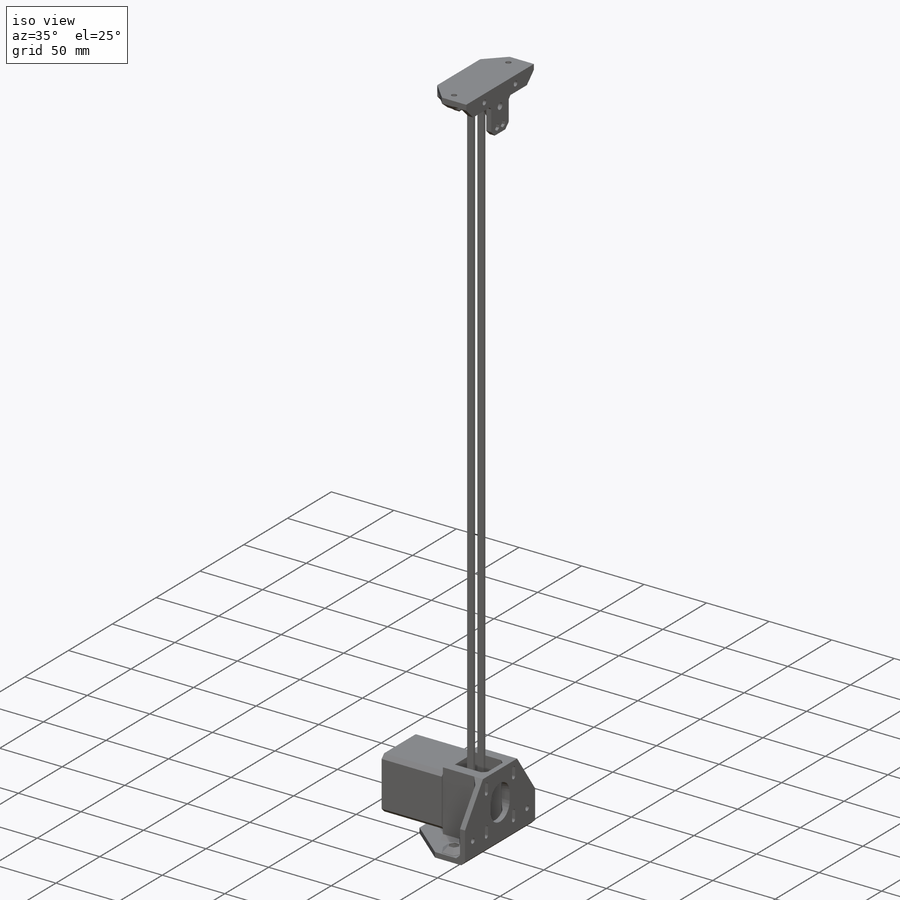
[diagram: iso view]
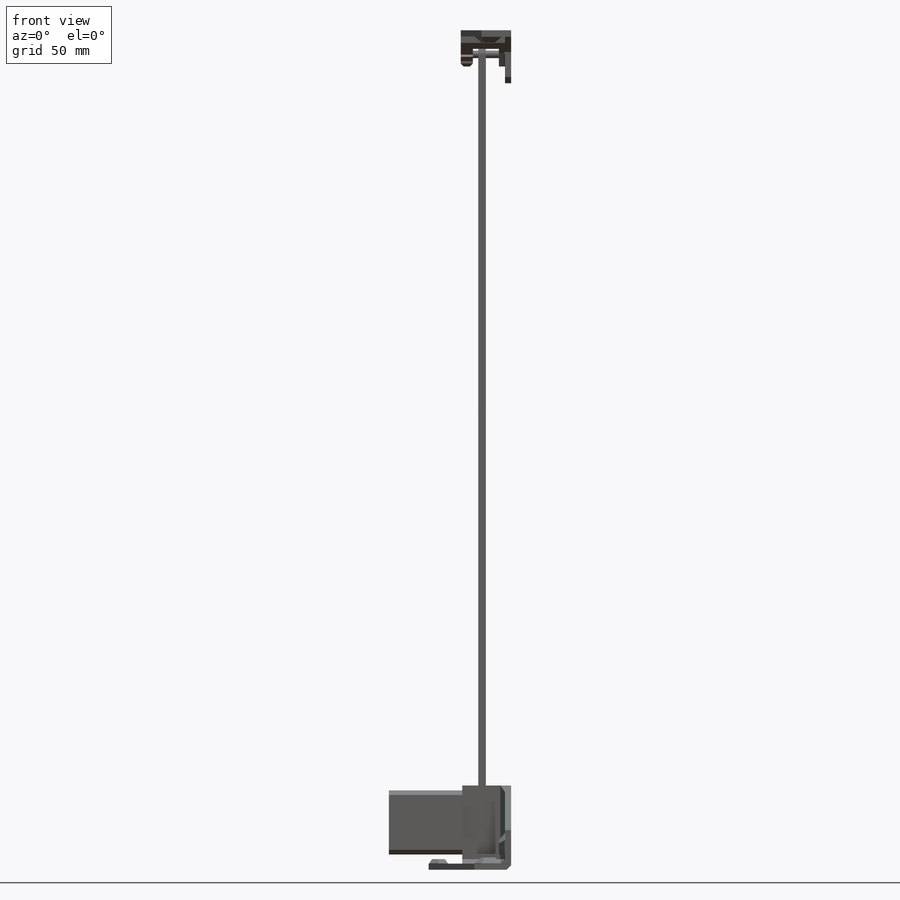
[diagram: front view]
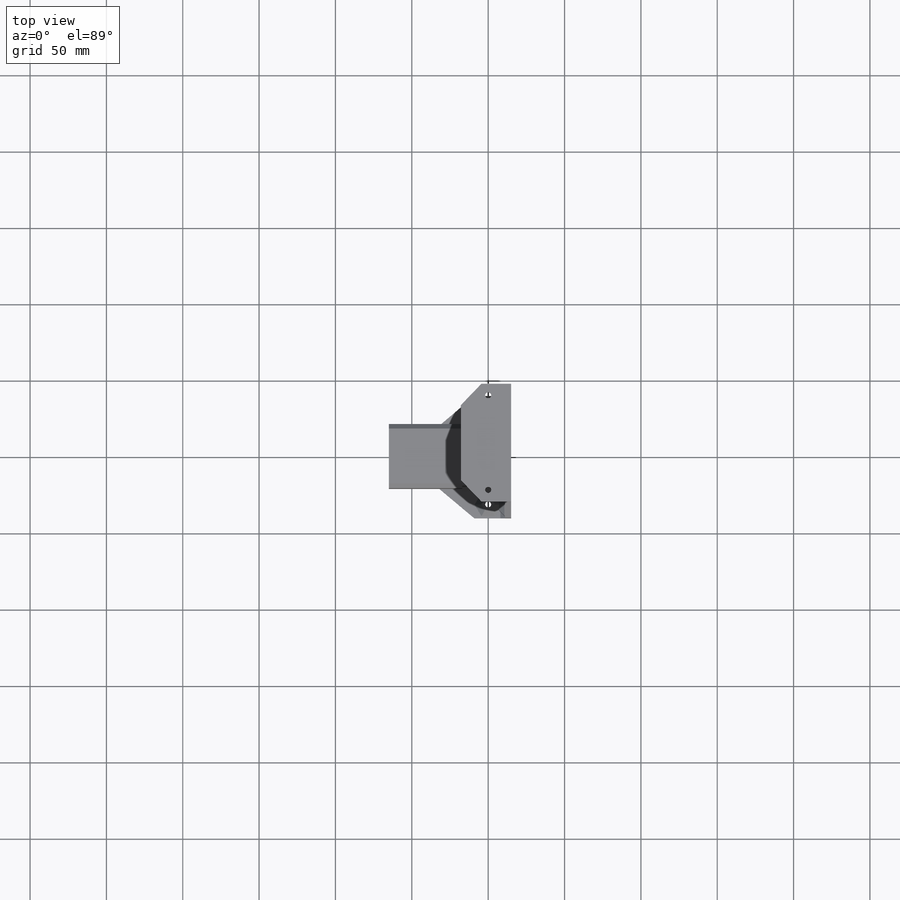
[diagram: top view]
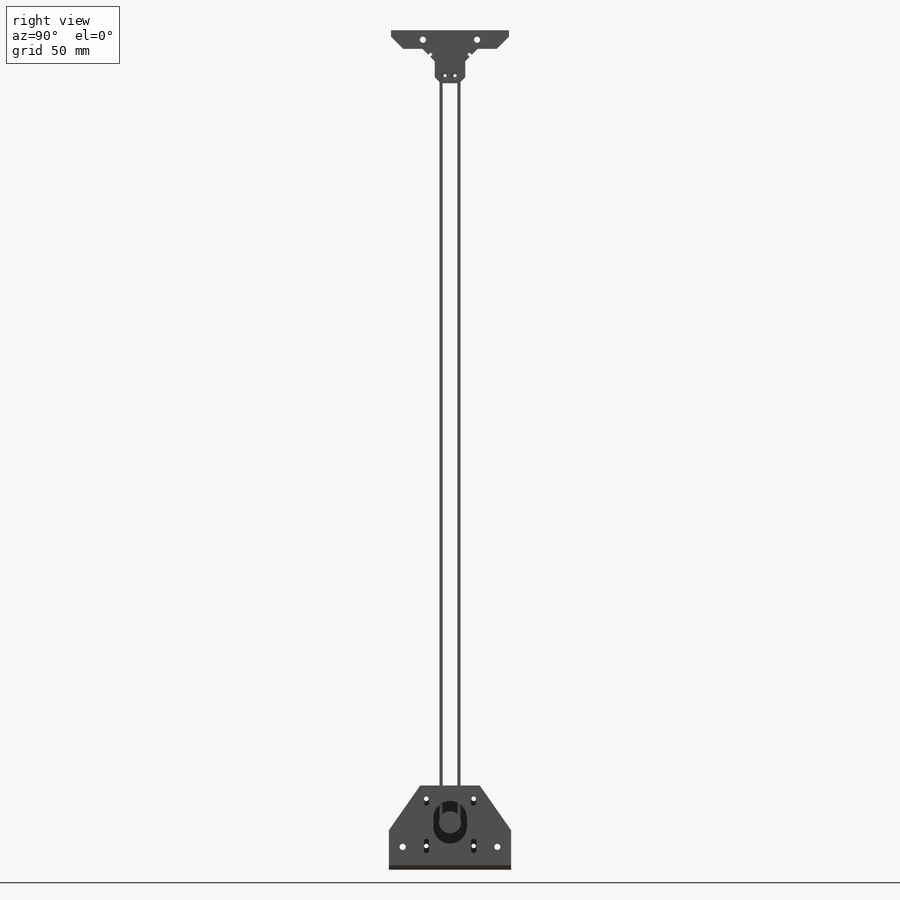
[diagram: right view]
SOLIDWORKS PART (.sldprt)
format: sldprt  version: not decoded by parser v0  size: 2,499,584 bytes
history: native  units: mm
features: sketch x57, extrude x38, chamfer x31, cut_extrude x18, material x1, cut_revolve x1 (+16 scaffold rows collapsed; 4 parser-record rows omitted)
feature tree (166):
  scaffold x16  (default folders/planes/origin — collapsed)
  material  "Material <not specified>"
  sketch  "Sketch1"  dims[D1=390.0mm D3=10.0mm D2=65.0mm D4=116.0mm D5=5.0mm D6=25.0mm]
  extrude  "Boss-Extrude1"  Depth=550mm
  sketch  "Sketch2"  dims[D1=0.0mm D2=0.0mm]
  cut_extrude  "Cut-Extrude1"  Depth=400mm
  parser-record x4  (decoder bookkeeping rows leaked as tree rows — omitted from the tree; the rows remain in map.json)
  sketch  "Sketch3"  dims[c1.D1=22.0mm c1.D9=3.4mm c1.D11=1.5mm c1.D2=40.0mm c1.D3=5.0mm c1.D4=28.0mm c1.D5=6.0mm c1.D6=~17.426623mm c2.D6=55.0deg c2.D7=31.0mm c2.D8=31.0mm c2.D10=6.0mm c2.D11=4.0mm c2.D12=4.0mm]
  extrude  "Boss-Extrude2"  Depth=4mm
  sketch  "Sketch4"  dims[D1=0.0mm D2=0.0mm D3=0.0mm D4=0.0mm]
  extrude  "Boss-Extrude3"  Depth=28mm
  sketch  "Sketch5"
  extrude  "Boss-Extrude4"  Depth=4mm
  sketch  "Sketch49"  dims[D1=22.0mm]
  extrude  "Boss-Extrude32"  [1 undecoded]
  chamfer  "Chamfer1"  Distance=3mm Angle=45deg
  chamfer  "Chamfer2"  Distance=30mm Angle=40deg
  chamfer  "Chamfer3"  Distance=3mm Angle=45deg
  sketch  "Sketch6"  dims[D1=12.0mm]
  cut_extrude  "Cut-Extrude2"  [1 undecoded]
  chamfer  "Chamfer4"  Distance=2mm Angle=45deg
  sketch  "Sketch7"  dims[c1.D1=~5.897016mm c1.D2=15.0mm c1.D3=31.0mm c2.D2=15.0mm c2.D4=4.0mm]
  extrude  "Boss-Extrude5"  Depth=4mm
  chamfer  "Chamfer5"  Distance=3.75mm Angle=45deg
  sketch  "Sketch22"  dims[D1=0.25mm D2=0.25mm]
  extrude  "Boss-Extrude12"  Depth=0.5mm
  chamfer  "Chamfer12"  Distance=0.25mm Angle=45deg
  sketch  "Sketch8"  dims[D3=4.0mm D1=15.0mm D2=31.0mm]
  cut_extrude  "Cut-Extrude3"  [1 undecoded]
  sketch  "Sketch26"  dims[D1=7.25mm D2=15.0mm D3=31.0mm D4=4.0mm]
  extrude  "Boss-Extrude16"  Depth=4mm
  chamfer  "Chamfer14"  Distance=3.75mm Angle=45deg
  sketch  "Sketch30"  dims[D1=0.0mm D2=0.25mm D3=0.0mm D4=0.25mm]
  extrude  "Boss-Extrude19"  Depth=0.5mm
  chamfer  "Chamfer17"  Distance=0.125mm Angle=45deg
  sketch  "Sketch31"  dims[D1=4.0mm]
  cut_extrude  "Cut-Extrude10"  [1 undecoded]
  sketch  "Sketch32"  dims[D1=7.25mm D3=6.5mm D2=2.5mm]
  extrude  "Boss-Extrude20"  Depth=4mm
  chamfer  "Chamfer18"  Distance=3.75mm
  sketch  "Sketch33"  dims[D1=0.0mm D2=0.25mm]
  extrude  "Boss-Extrude21"  Depth=0.5mm
  chamfer  "Chamfer19"  Distance=0.125mm Angle=45deg
  sketch  "Sketch34"  dims[D1=4.0mm]
  cut_extrude  "Cut-Extrude11"  [1 undecoded]
  sketch  "Sketch50"  dims[c1.D1=4.0mm c1.D3=7.25mm c1.D4=7.25mm c1.D2=22.0mm c2.D4=2.5mm]
  extrude  "Boss-Extrude33"  Depth=3mm
  sketch  "Sketch51"  dims[D1=0.0mm]
  cut_extrude  "Cut-Extrude17"  Depth=1mm
  sketch  "Sketch52"  dims[D1=4.0mm]
  cut_extrude  "Cut-Extrude18"  [1 undecoded]
  chamfer  "Chamfer26"  Distance=2.75mm Angle=35deg
  sketch  "Sketch54"  dims[D1=0.0mm D2=0.25mm]
  extrude  "Boss-Extrude34"  Depth=0.5mm
  chamfer  "Chamfer27"  Distance=0.125mm Angle=45deg
  chamfer  "Chamfer28"  Distance=0.25mm Angle=45deg
  sketch  "Sketch23"  dims[c1.D1=3.0mm c1.D3=22.0mm c1.D2=42.0mm c2.D3=3.0mm c2.D4=31.0mm c2.D5=31.0mm]
  extrude  "Boss-Extrude13"  Depth=48mm
  chamfer  "Chamfer13"  Distance=3mm Angle=45deg
  sketch  "Sketch24"  dims[D1=22.0mm]
  extrude  "Boss-Extrude14"  Depth=2mm
  sketch  "Sketch25"  dims[D1=5.0mm]
  extrude  "Boss-Extrude15"  Depth=22mm
  sketch  "Sketch9"  dims[D1=42.0mm D2=32.8mm D3=18.0mm D4=6.0mm]
  extrude  "Boss-Extrude6"  Depth=14mm
  sketch  "Sketch10"  dims[D1=23.0mm D2=1.0mm D3=20.0mm]
  extrude  "Boss-Extrude7"  Depth=33mm
  sketch  "Sketch11"  dims[D2=30.0mm D1=4.0mm]
  cut_extrude  "Cut-Extrude4"  Depth=8mm
  sketch  "Sketch12"  dims[D1=5.2mm D2=8.0mm]
  cut_extrude  "Cut-Extrude5"  [1 undecoded]
  sketch  "Sketch13"  dims[D4=5.0mm D1=4.0mm D2=6.0mm D3=8.0mm]
  cut_extrude  "Cut-Extrude6"  Depth=5mm
  sketch  "Sketch36"  dims[D1=2.0mm]
  extrude  "Boss-Extrude22"  [1 undecoded]
  sketch  "Sketch37"  dims[D1=1.0mm]
  extrude  "Boss-Extrude23"  Depth=0.3mm
  sketch  "Sketch38"  dims[D1=0.25mm]
  extrude  "Boss-Extrude24"  Depth=0.5mm
  chamfer  "Chamfer20"  Distance=0.25mm Angle=45deg
  sketch  "Sketch42"  dims[D1=3.5mm D2=0.25mm]
  extrude  "Boss-Extrude28"  Depth=1mm
  sketch  "Sketch43"  dims[D1=0.0mm]
  cut_extrude  "Cut-Extrude13"  Depth=1.25mm
  sketch  "Sketch35"  dims[D1=0.0mm]
  cut_extrude  "Cut-Extrude12"  Depth=5mm
  sketch  "Sketch40"  dims[D1=0.0mm D2=0.0mm]
  extrude  "Boss-Extrude26"  Depth=0.3mm
  sketch  "Sketch41"
  extrude  "Boss-Extrude27"  Depth=0.5mm
  chamfer  "Chamfer21"  Distance=0.25mm Angle=45deg
  sketch  "Sketch14"  dims[D1=0.1mm]
  extrude  "Boss-Extrude8"  Depth=25mm
  chamfer  "Chamfer22"  Distance=1mm Angle=45deg
  sketch  "Sketch15"  dims[D1=6.0mm]
  extrude  "Boss-Extrude9"  Depth=16mm
  sketch  "Sketch16"  dims[c1.D1=~5.063989mm c2.D1=90.0deg c3.D1=~5.500539mm c4.D1=95.0deg c4.D2=~5.500539mm c5.D2=95.0deg c5.D3=7.0mm c5.D4=7.0mm c5.D5=7.0mm c6.D3=9.75mm c6.D5=7.0mm c6.D4=7.0mm c6.D6=0.5mm c7.D3=9.7mm]
  cut_revolve  "Cut-Revolve1"  Angle=360deg
  sketch  "Sketch17"  dims[D1=14.5mm]
  extrude  "Boss-Extrude10"  [1 undecoded]
  chamfer  "Chamfer6"  Distance=4mm Angle=45deg
  chamfer  "Chamfer23"  Distance=8mm Angle=45deg
  chamfer  "Chamfer7"  Distance=2mm Angle=45deg
  sketch  "Sketch18"  dims[c1.D1=7.2mm c1.D2=35.5mm c1.D3=~4.156609mm c2.D3=~0.702819deg c3.D3=5.5mm]
  cut_extrude  "Cut-Extrude7"  Depth=3.85mm
  sketch  "Sketch19"  dims[D1=4.0mm]
  cut_extrude  "Cut-Extrude8"  [1 undecoded]
  sketch  "Sketch20"  dims[D2=2.0mm D1=6.5mm D3=5.0mm D4=11.0mm]
  extrude  "Boss-Extrude11"  Depth=4mm
  sketch  "Sketch21"  dims[D1=4.5mm]
  cut_extrude  "Cut-Extrude9"  Depth=2.2mm
  chamfer  "Chamfer24"  Distance=2mm Angle=45deg
  chamfer  "Chamfer9"  Distance=6mm
  chamfer  "Chamfer10"  Distance=10mm
  chamfer  "Chamfer11"  Distance=1mm Angle=45deg
  sketch  "Sketch27"  dims[D1=0.25mm D2=0.25mm]
  extrude  "Boss-Extrude17"  Depth=0.5mm
  chamfer  "Chamfer15"  Distance=0.25mm Angle=45deg
  sketch  "Sketch29"  dims[D1=0.0mm D2=0.25mm D3=0.0mm D4=0.25mm]
  extrude  "Boss-Extrude18"  Depth=0.5mm
  chamfer  "Chamfer16"  Distance=0.25mm Angle=45deg
  chamfer  "Chamfer25"  Distance=4mm Angle=45deg
  sketch  "Sketch55"  dims[D1=0.0mm]
  extrude  "Boss-Extrude35"  Depth=0.75mm
  sketch  "Sketch56"  dims[D3=4.0mm D1=62.0mm D2=15.0mm]
  extrude  "Boss-Extrude36"  Depth=4mm
  sketch  "Sketch57"
  extrude  "Boss-Extrude37"  Depth=4mm
  chamfer  "Chamfer29"  Distance=8mm Angle=45deg
  sketch  "Sketch58"  dims[c1.D1=15.25mm c1.D2=7.25mm c1.D3=7.25mm c2.D1=4.0mm c2.D3=4.0mm]
  extrude  "Boss-Extrude38"  Depth=4mm
  chamfer  "Chamfer30"  Distance=3.75mm Angle=45deg
  sketch  "Sketch60"  dims[D1=2.0mm D2=4.0mm]
  cut_extrude  "Cut-Extrude19"  Depth=2mm
  sketch  "Sketch61"  dims[D1=4.0mm D2=2.0mm]
  sketch  "Sketch62"  dims[D1=0.25mm D2=0.0mm D3=0.25mm]
  extrude  "Boss-Extrude39"  Depth=0.5mm
  cut_extrude  "Cut-Extrude20"  Depth=2mm
  chamfer  "Chamfer31"  Distance=0.125mm Angle=45deg
  chamfer  "Chamfer32"  Distance=0.25mm Angle=45deg
  sketch  "Sketch48"  dims[D1=10.0mm]
  extrude  "Boss-Extrude31"  Depth=4mm
  sketch  "Sketch45"  dims[D2=5.5mm D1=32.0mm]
  cut_extrude  "Cut-Extrude14"  [1 undecoded]
  sketch  "Sketch47"  dims[D1=5.0mm D2=14.5mm]
  extrude  "Boss-Extrude30"  Depth=19mm
  sketch  "Sketch44"  dims[D2=9.7mm D1=2.0mm D3=2.0mm]
  extrude  "Boss-Extrude29"  Depth=5mm
decode coverage: 131 of 145 modeling features carry decoded parameters
note: ~ marks probable driven/reference dimensions
note: 11 parameter values undecoded
summary: no parameter record found for 11 features
note: suppression state not decoded; provenance and decode notes live in map.json
